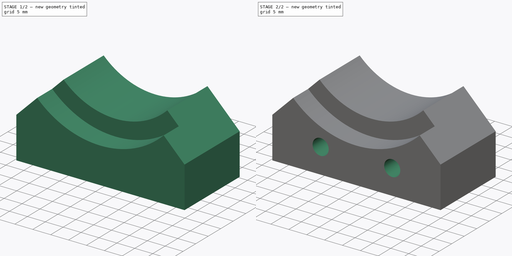
[diagram: build sequence overview — one tinted view per stage of 2, left to right]
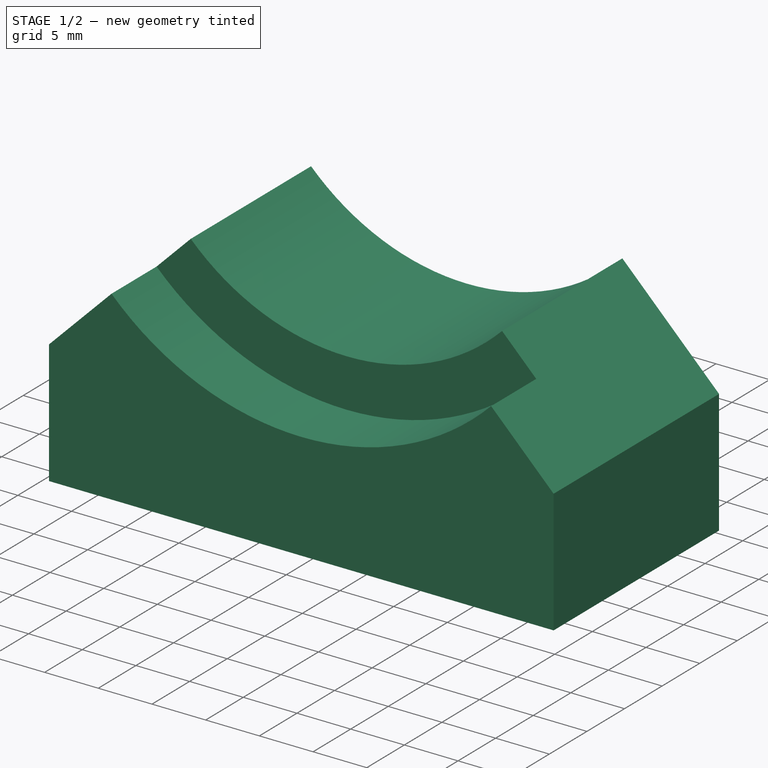
[diagram: stage 1 of 2 — iso view after this stage's code; geometry added in this stage tinted green]
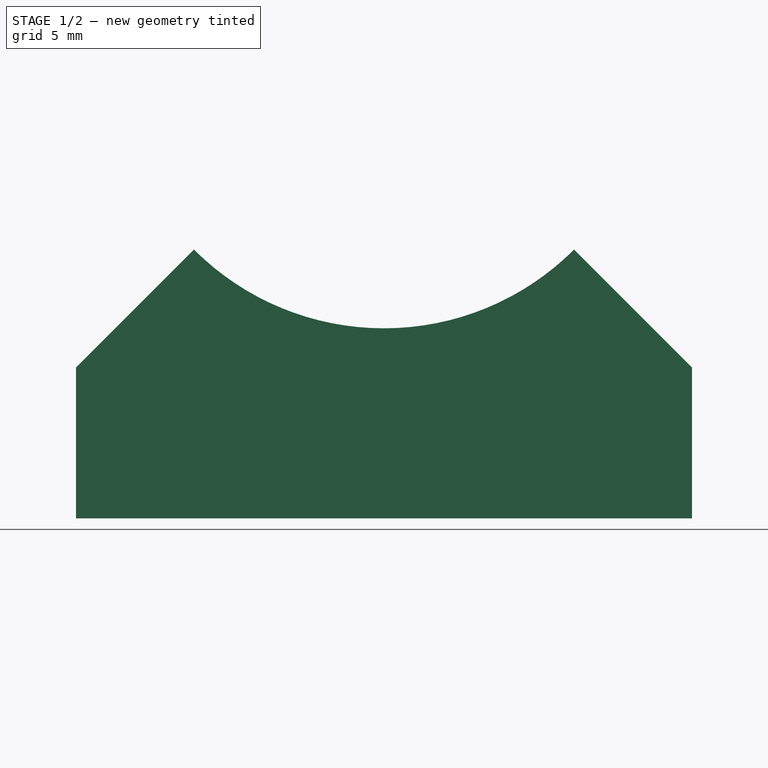
[diagram: stage 1 of 2 — front view after this stage's code; geometry added in this stage tinted green]
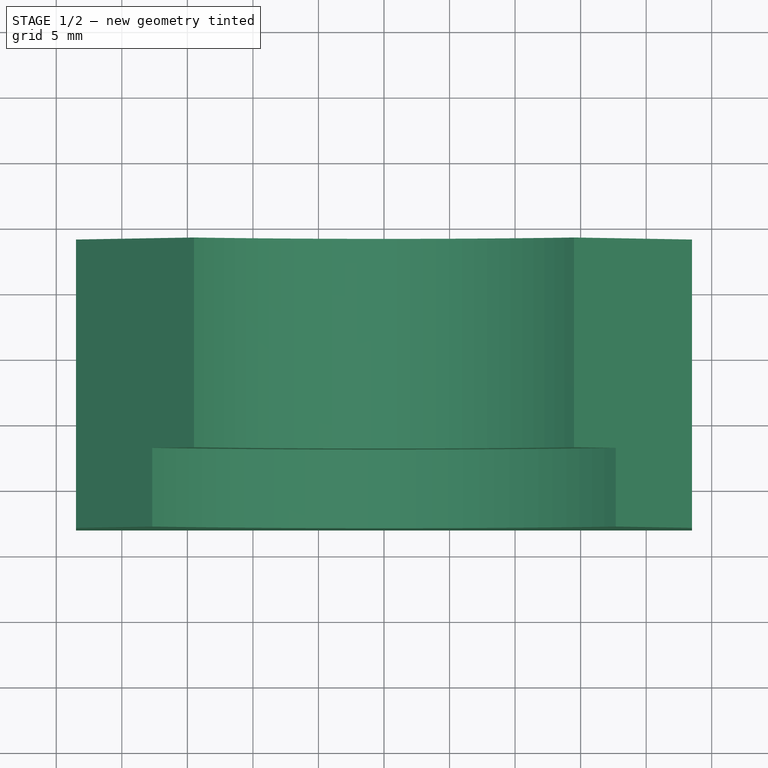
[diagram: stage 1 of 2 — top view after this stage's code; geometry added in this stage tinted green]
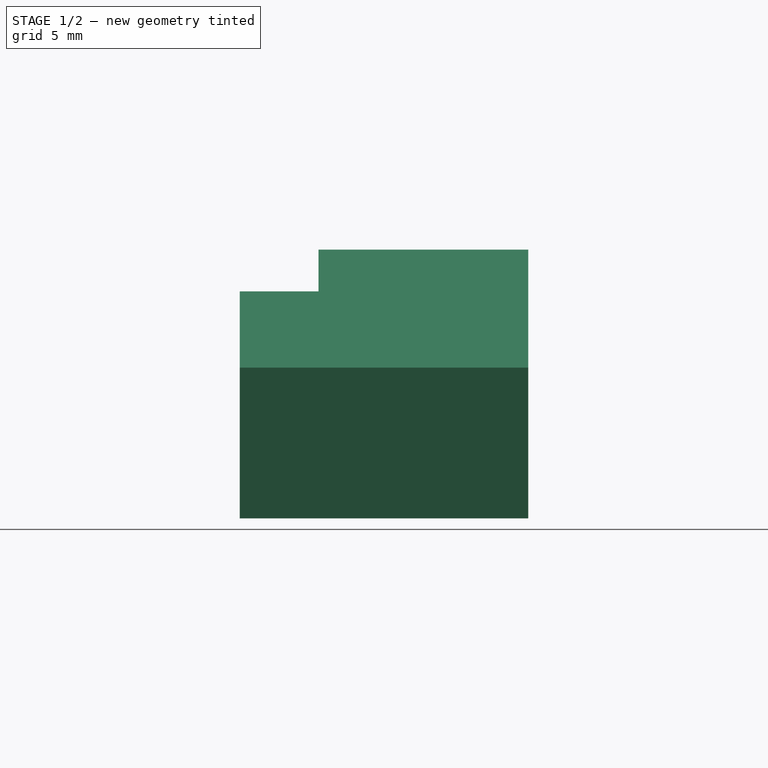
[diagram: stage 1 of 2 — right view after this stage's code; geometry added in this stage tinted green]
FCSTD DOCUMENT  (FreeCAD 0.21R32110 (Git))
Label: Frame_Roll_Limit_Stop
License: All rights reserved
LicenseURL: http://en.wikipedia.org/wiki/All_rights_reserved
objects: Sketcher::SketchObject×3, PartDesign::Pad×1, PartDesign::Pocket×1, PartDesign::Hole×1, PartDesign::Body×1
note: 10 computed .brp shape members not serialized (recipe doc carries the construction recipe); baked Part::Feature solids carry a one-line shape summary decoded from their .brp

FEATURE [Sketcher::SketchObject] Sketch078
  AttachmentOffset = pos=(0,0,-27) rot=(0,0,1;0rad)
  FullyConstrained = false
  MapMode = 5
  Placement = pos=(0,27,6e-15) rot=(1,0,0;1.5708rad)
  Support = -> [XZ_Plane028]
  sketch-geometry (8):
    g0: LineSegment StartX=-23.5 StartY=-35 StartZ=0 EndX=23.5 EndY=-35 EndZ=0
    g1: LineSegment StartX=23.5 StartY=-35 StartZ=0 EndX=23.5 EndY=-23.5 EndZ=0
    g2: LineSegment StartX=-23.5 StartY=-23.5 StartZ=0 EndX=-23.5 EndY=-35 EndZ=0
    g3: LineSegment StartX=0 StartY=0 StartZ=0 EndX=23.5001 EndY=-23.5001 EndZ=0
    g4: LineSegment StartX=0 StartY=0 StartZ=0 EndX=-23.5 EndY=-23.5 EndZ=0
    g5: ArcOfCircle CenterX=0 CenterY=0 CenterZ=0 NormalX=0 NormalY=0 NormalZ=1 AngleXU=0 Radius=20.5 StartAngle=3.92699 EndAngle=5.49779
    g6: LineSegment StartX=14.4957 StartY=-14.4957 StartZ=0 EndX=23.5 EndY=-23.5 EndZ=0
    g7: LineSegment StartX=-23.5 StartY=-23.5 StartZ=0 EndX=-14.4957 EndY=-14.4957 EndZ=0
  constraints (21):
    c: Coincident(g0,g1)
    c: Coincident(g2,g0)
    c: Vertical(g1)
    c: Vertical(g2)
    c: Symmetric(g0,g0,g-2)
    c: DistanceX(g0,g0) = 47
    c: Coincident(g3,g-1)
    c: Coincident(g4,g3)
    c: Angle(g4) = -2.35619
    c: Angle(g3) = -0.785398
    c: Coincident(g5,g3)
    c: Diameter(g5) = 41
    c: PointOnObject(g5,g3)
    c: PointOnObject(g5,g4)
    c: Coincident(g6,g5)
    c: Coincident(g6,g1)
    c: Coincident(g4,g2)
    c: Equal(g2,g1)
    c: Coincident(g7,g2)
    c: Coincident(g7,g5)
    c: DistanceY(g0) = -35
FEATURE [PartDesign::Pad] Pad046
  Direction = (0,-1,-2e-16)
  Length = 22
  Length2 = 10
  Placement = pos=(0,0,0) rot=(1,0,0;1.5708rad)
  Profile = -> Sketch078
  ReferenceAxis = -> Sketch078 [N_Axis]
  Reversed = true
  Type = 0
FEATURE [Sketcher::SketchObject] Sketch
  AttachmentOffset = pos=(0,0,-27) rot=(0,0,1;0rad)
  FullyConstrained = true
  MapMode = 5
  Placement = pos=(0,27,6e-15) rot=(1,0,0;1.5708rad)
  Support = -> [XZ_Plane028]
  sketch-geometry (1):
    g0: Circle CenterX=0 CenterY=0 CenterZ=0 NormalX=0 NormalY=0 NormalZ=1 AngleXU=0 Radius=25
  constraints (2):
    c: Coincident(g0,g-1)
    c: Diameter(g0) = 50
FEATURE [PartDesign::Pocket] Pocket
  BaseFeature = -> Pad046
  Direction = (0,1,2e-16)
  Length = 6
  Length2 = 5
  Placement = pos=(0,0,0) rot=(1,0,0;1.5708rad)
  Profile = -> Sketch
  ReferenceAxis = -> Sketch [N_Axis]
  Type = 0
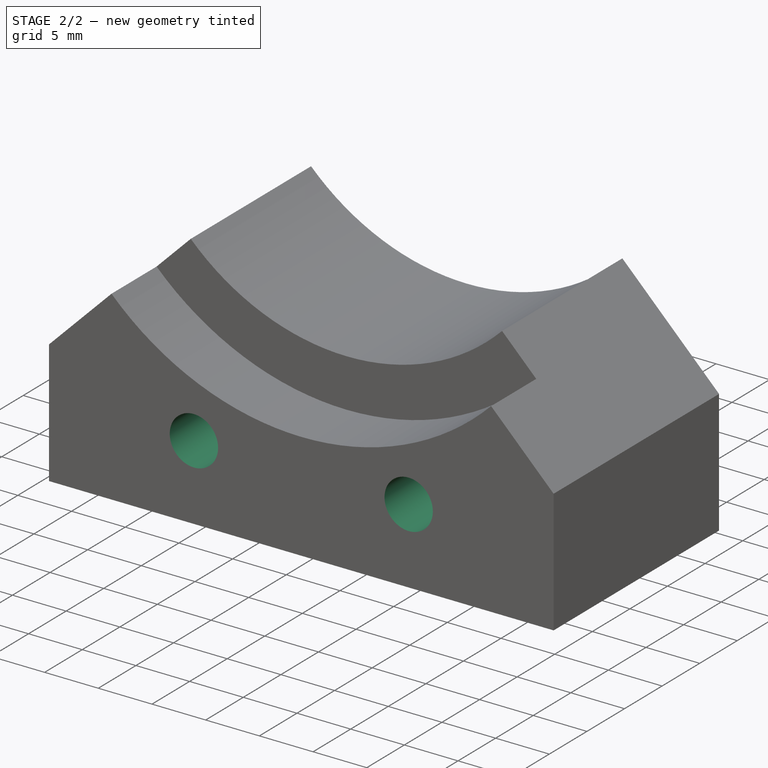
[diagram: stage 2 of 2 — iso view after this stage's code; geometry added in this stage tinted green]
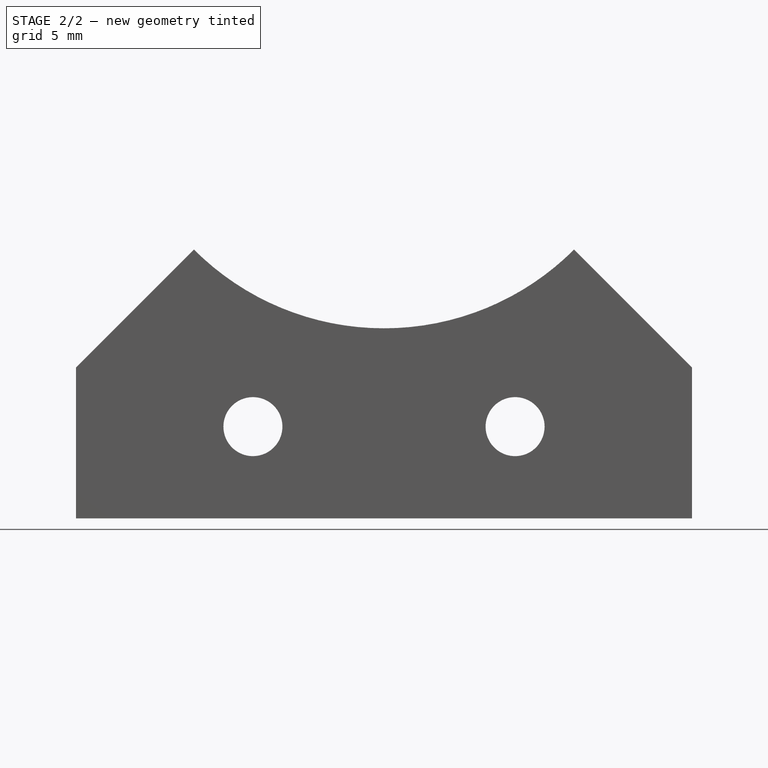
[diagram: stage 2 of 2 — front view after this stage's code; geometry added in this stage tinted green]
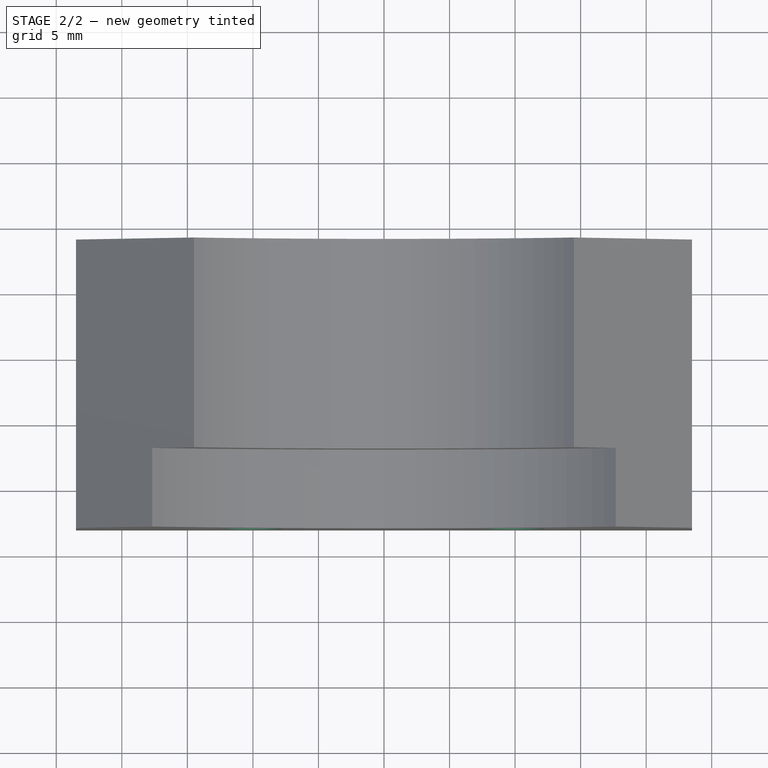
[diagram: stage 2 of 2 — top view after this stage's code; geometry added in this stage tinted green]
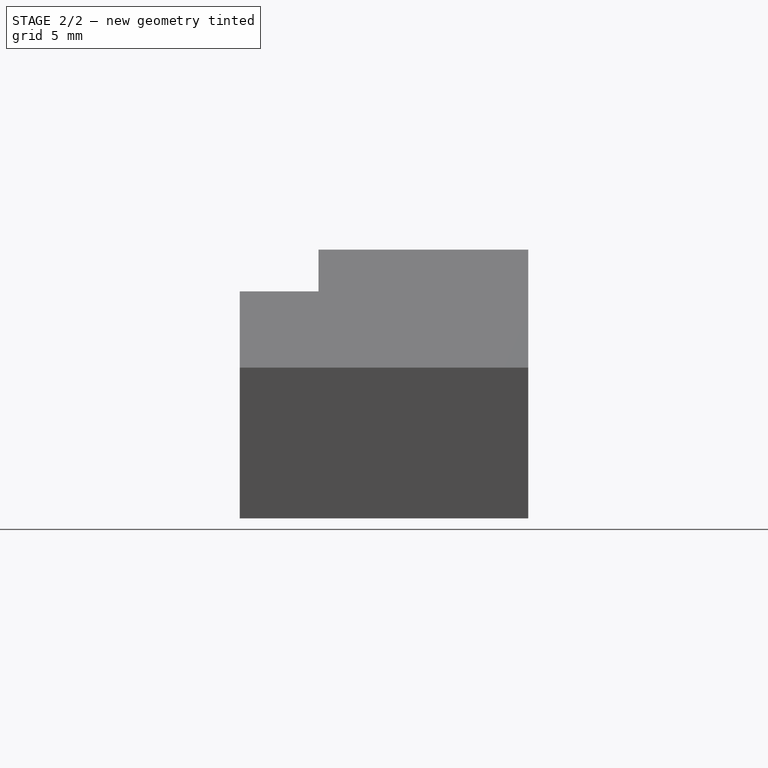
[diagram: stage 2 of 2 — right view after this stage's code; geometry added in this stage tinted green]
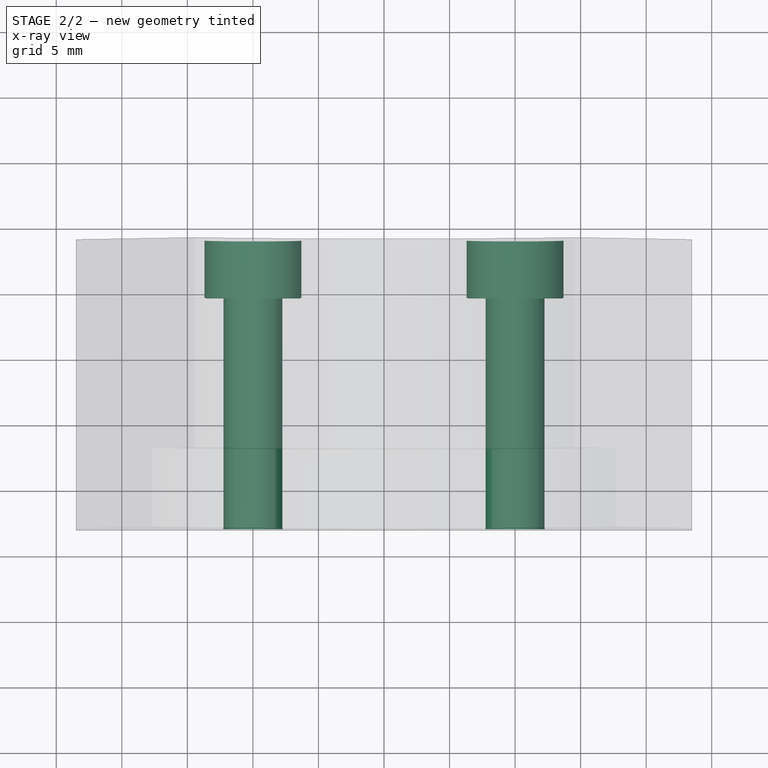
[diagram: stage 2 of 2 — x-ray composite at the top view; earlier geometry ghosted, this stage's added geometry solid]
FEATURE [Sketcher::SketchObject] Sketch079
  AttachmentOffset = pos=(0,0,-49) rot=(0,0,1;0rad)
  FullyConstrained = true
  MapMode = 5
  Placement = pos=(0,49,1.09e-14) rot=(1,0,0;1.5708rad)
  Support = -> [XZ_Plane028]
  sketch-geometry (2):
    g0: Circle CenterX=-10 CenterY=-28 CenterZ=0 NormalX=0 NormalY=0 NormalZ=1 AngleXU=0 Radius=2.25
    g1: Circle CenterX=10 CenterY=-28 CenterZ=0 NormalX=0 NormalY=0 NormalZ=1 AngleXU=0 Radius=2.25
  constraints (5):
    c: Symmetric(g0,g1,g-2)
    c: Distance(g0,g1) = 20
    c: Equal(g0,g1)
    c: Diameter(g0) = 4.5
    c: DistanceY(g1) = -28
FEATURE [PartDesign::Hole] Hole
  BaseFeature = -> Pocket
  CustomThreadClearance = 0
  Depth = 112.712
  DepthType = 1
  Diameter = 4.5
  DrillForDepth = false
  DrillPoint = 1
  DrillPointAngle = 118
  HoleCutCountersinkAngle = 90
  HoleCutCustomValues = false
  HoleCutDepth = 4.4
  HoleCutDiameter = 7.4
  HoleCutType = 1
  ModelThread = false
  Placement = pos=(0,0,0) rot=(1,0,0;1.5708rad)
  Profile = -> Sketch079
  Reversed = true
  Tapered = false
  TaperedAngle = 90
  ThreadClass = 0
  ThreadDepth = 112.712
  ThreadDepthType = 0
  ThreadDirection = 0
  ThreadFit = 0
  ThreadSize = 11
  ThreadType = 1
  Threaded = false
  UseCustomThreadClearance = false
FEATURE [PartDesign::Body] Body019  label="Roll limit stop"
  Group = -> [Sketch078,Pad046,Sketch,Pocket,Sketch079,Hole]
  Origin = -> Origin028
  Tip = -> Hole
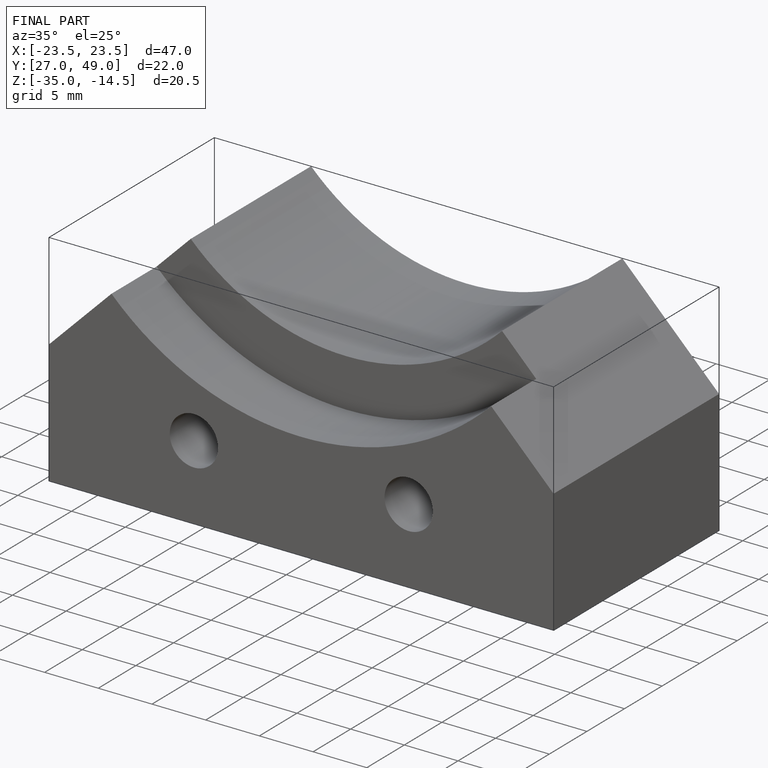
[diagram: finished part — iso view with bounding-box wireframe]
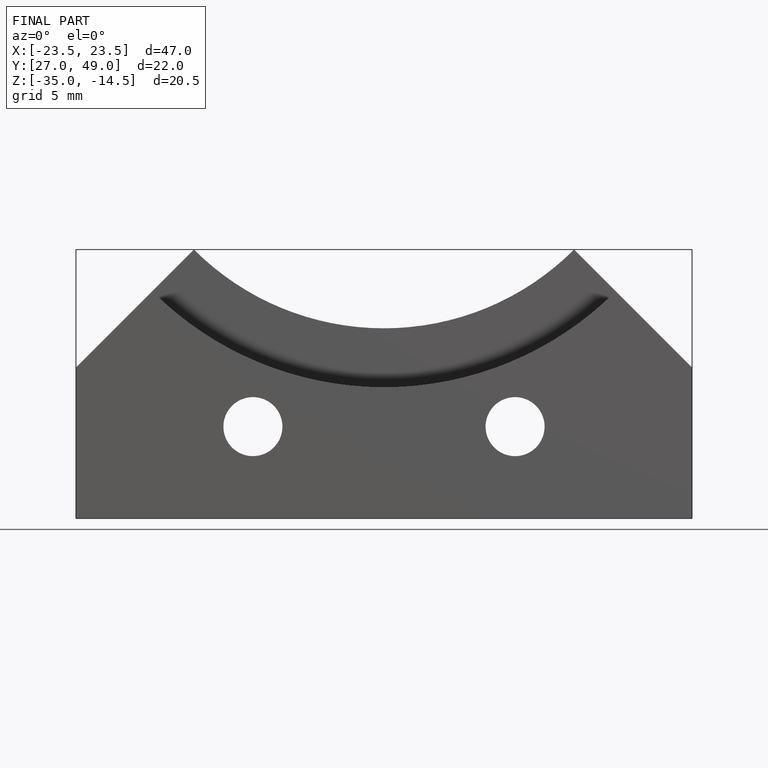
[diagram: finished part — front view with bounding-box wireframe]
